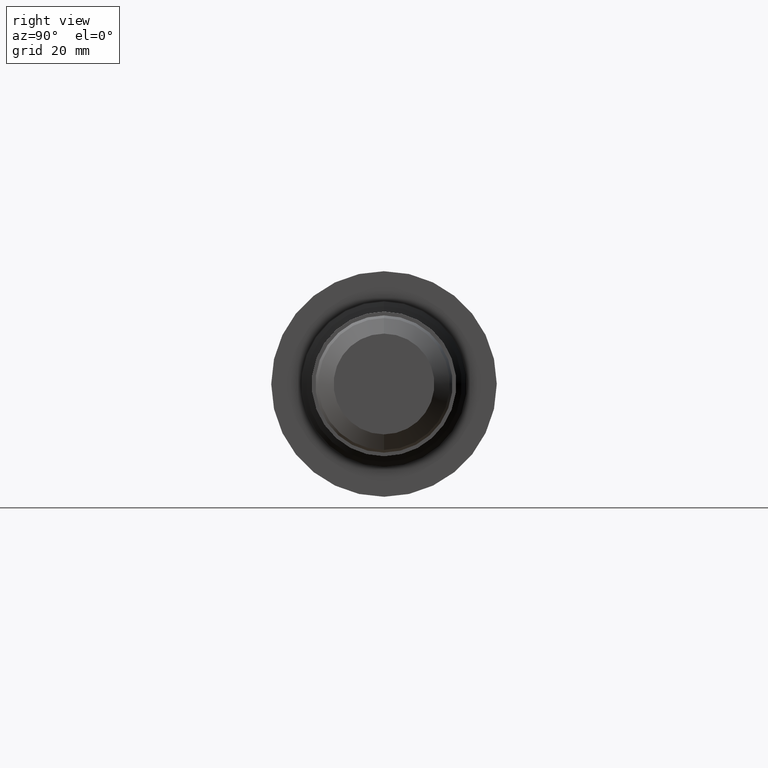
[diagram: clean part render]
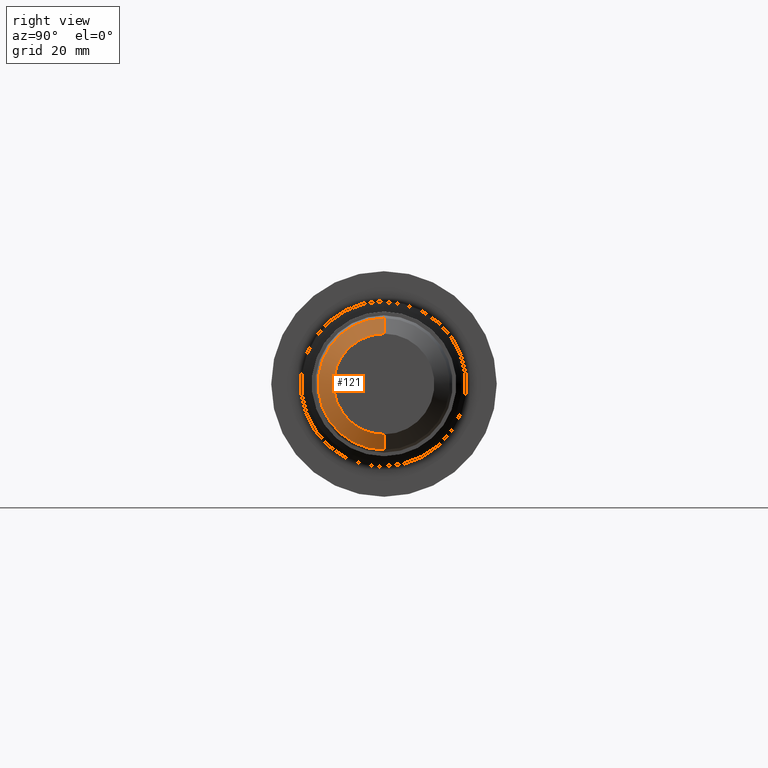
[diagram: same view with one face highlighted and labeled with its STEP entity id]
A machine part, right view. The second image highlights one B-rep face of the part: STEP entity #121.
In plain terms, the highlighted conical surface has half-angle 60 deg.
Its self-contained STEP definition (entity closure, byte-faithful):
#21 = VECTOR ( 'NONE', #496, 39.37007874015748854 ) ;
#46 = CARTESIAN_POINT ( 'NONE',  ( 5.500000000000000000, 0.0000000000000000000, 0.4209961894323342446 ) ) ;
#89 = DIRECTION ( 'NONE',  ( 0.0000000000000000000, 0.0000000000000000000, 1.000000000000000000 ) ) ;
#121 = ADVANCED_FACE ( 'NONE', ( #676 ), #471, .T. ) ;
#152 = ORIENTED_EDGE ( 'NONE', *, *, #440, .T. ) ;
#177 = CARTESIAN_POINT ( 'NONE',  ( 5.424999999999999822, 0.0000000000000000000, 0.0000000000000000000 ) ) ;
#194 = VERTEX_POINT ( 'NONE', #243 ) ;
#229 = VECTOR ( 'NONE', #854, 39.37007874015748854 ) ;
#243 = CARTESIAN_POINT ( 'NONE',  ( 5.424999999999999822, 0.0000000000000000000, 0.5509000000000001673 ) ) ;
#244 = CIRCLE ( 'NONE', #553, 0.4209961894323342446 ) ;
#250 = CARTESIAN_POINT ( 'NONE',  ( 5.500000000000000000, 5.951147787459089409E-17, -0.4209961894323342446 ) ) ;
#268 = VERTEX_POINT ( 'NONE', #510 ) ;
#283 = ORIENTED_EDGE ( 'NONE', *, *, #759, .T. ) ;
#287 = CARTESIAN_POINT ( 'NONE',  ( 5.500000000000000000, 0.0000000000000000000, 0.0000000000000000000 ) ) ;
#288 = DIRECTION ( 'NONE',  ( -1.000000000000000000, -0.0000000000000000000, -0.0000000000000000000 ) ) ;
#290 = VERTEX_POINT ( 'NONE', #250 ) ;
#319 = DIRECTION ( 'NONE',  ( 0.0000000000000000000, 0.0000000000000000000, 1.000000000000000000 ) ) ;
#439 = DIRECTION ( 'NONE',  ( 0.0000000000000000000, 0.0000000000000000000, 1.000000000000000000 ) ) ;
#440 = EDGE_CURVE ( 'NONE', #290, #852, #244, .T. ) ;
#471 = CONICAL_SURFACE ( 'NONE', #539, 0.4209961894323342446, 1.047197551196600074 ) ;
#496 = DIRECTION ( 'NONE',  ( -0.4999999999999979461, 1.060575238724908024E-16, -0.8660254037844397068 ) ) ;
#497 = EDGE_CURVE ( 'NONE', #290, #268, #707, .T. ) ;
#502 = ORIENTED_EDGE ( 'NONE', *, *, #758, .F. ) ;
#510 = CARTESIAN_POINT ( 'NONE',  ( 5.424999999999999822, 6.746579216502770273E-17, -0.5509000000000001673 ) ) ;
#539 = AXIS2_PLACEMENT_3D ( 'NONE', #287, #694, #89 ) ;
#553 = AXIS2_PLACEMENT_3D ( 'NONE', #631, #683, #439 ) ;
#586 = ORIENTED_EDGE ( 'NONE', *, *, #497, .F. ) ;
#588 = CIRCLE ( 'NONE', #604, 0.5509000000000000563 ) ;
#604 = AXIS2_PLACEMENT_3D ( 'NONE', #177, #288, #319 ) ;
#631 = CARTESIAN_POINT ( 'NONE',  ( 5.500000000000000000, 0.0000000000000000000, 0.0000000000000000000 ) ) ;
#676 = FACE_OUTER_BOUND ( 'NONE', #826, .T. ) ;
#683 = DIRECTION ( 'NONE',  ( -1.000000000000000000, -0.0000000000000000000, -0.0000000000000000000 ) ) ;
#694 = DIRECTION ( 'NONE',  ( -1.000000000000000000, -0.0000000000000000000, -0.0000000000000000000 ) ) ;
#707 = LINE ( 'NONE', #821, #21 ) ;
#735 = CARTESIAN_POINT ( 'NONE',  ( 5.500000000000000000, 0.0000000000000000000, 0.4209961894323342446 ) ) ;
#749 = LINE ( 'NONE', #735, #229 ) ;
#758 = EDGE_CURVE ( 'NONE', #268, #194, #588, .T. ) ;
#759 = EDGE_CURVE ( 'NONE', #852, #194, #749, .T. ) ;
#821 = CARTESIAN_POINT ( 'NONE',  ( 5.500000000000000000, 5.155716358415409161E-17, -0.4209961894323342446 ) ) ;
#826 = EDGE_LOOP ( 'NONE', ( #586, #152, #283, #502 ) ) ;
#852 = VERTEX_POINT ( 'NONE', #46 ) ;
#854 = DIRECTION ( 'NONE',  ( -0.4999999999999979461, 0.0000000000000000000, 0.8660254037844397068 ) ) ;